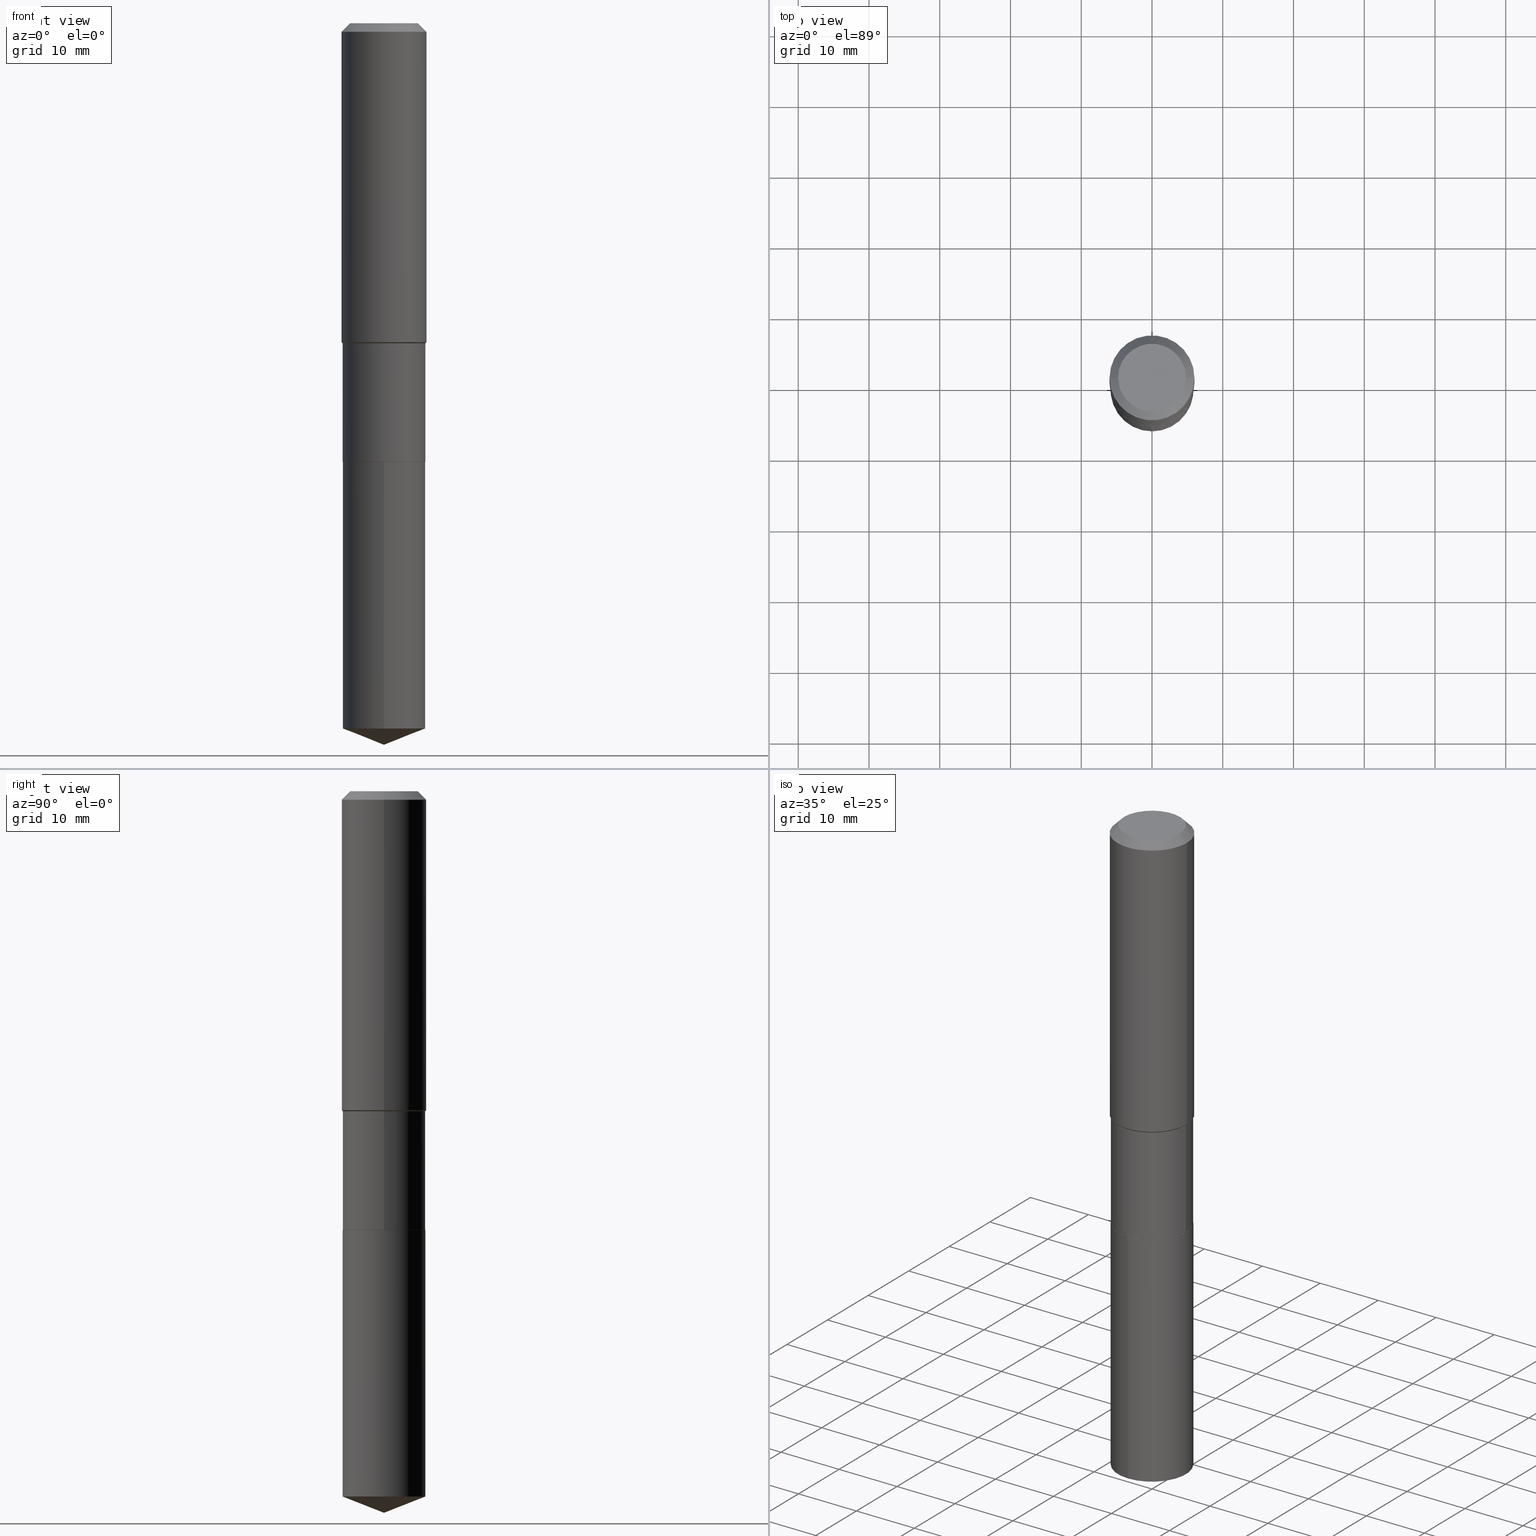
[diagram: canonical four-view strip — front | top / right | iso, engineering-drawing reading convention]
A machine part, canonical four-view strip (front | top / right | iso — engineering-drawing reading convention). The complete STEP part file that produces these views, byte-faithful:
ISO-10303-21;
HEADER;
FILE_DESCRIPTION (( 'STEP AP203' ),
    '1' );
FILE_NAME ('66487.STEP',
    '2024-04-24T23:36:51',
    ( '' ),
    ( '' ),
    'SwSTEP 2.0',
    'SolidWorks 2023',
    '' );
FILE_SCHEMA (( 'CONFIG_CONTROL_DESIGN' ));
ENDSEC;

DATA;
#1 = CYLINDRICAL_SURFACE ( 'NONE', #33, 0.2362000000000001043 ) ;
#2 = ORIENTED_EDGE ( 'NONE', *, *, #67, .T. ) ;
#3 = CARTESIAN_POINT ( 'NONE',  ( -9.427742298522546243E-47, 1.346031739168365344E-32, 3.855188123715862256E-18 ) ) ;
#4 = EDGE_CURVE ( 'NONE', #344, #413, #25, .T. ) ;
#5 = EDGE_LOOP ( 'NONE', ( #487, #421 ) ) ;
#6 = AXIS2_PLACEMENT_3D ( 'NONE', #352, #126, #206 ) ;
#7 = CIRCLE ( 'NONE', #150, 0.2302999999999999214 ) ;
#8 = ORIENTED_EDGE ( 'NONE', *, *, #53, .T. ) ;
#9 = PERSON_AND_ORGANIZATION ( #21, #162 ) ;
#10 = DIRECTION ( 'NONE',  ( 1.000000000000000000, -6.982962677686268288E-15, 0.000000000000000000 ) ) ;
#11 = CARTESIAN_POINT ( 'NONE',  ( 4.341440771620472019E-29, -6.198426820848235118E-15, -1.775299999999999434 ) ) ;
#12 = DIRECTION ( 'NONE',  ( 1.000000000000000000, -6.982962677686266711E-15, 0.000000000000000000 ) ) ;
#13 = DIRECTION ( 'NONE',  ( -2.445468806185136877E-29, 3.491481338843145188E-15, 1.000000000000000000 ) ) ;
#14 = CIRCLE ( 'NONE', #58, 0.2362000000000002153 ) ;
#15 =( GEOMETRIC_REPRESENTATION_CONTEXT ( 3 ) GLOBAL_UNCERTAINTY_ASSIGNED_CONTEXT ( ( #178 ) ) GLOBAL_UNIT_ASSIGNED_CONTEXT ( ( #317, #404, #329 ) ) REPRESENTATION_CONTEXT ( 'NONE', 'WORKASPACE' ) );
#16 = DIRECTION ( 'NONE',  ( -2.445468806185136597E-29, 3.491481338843145583E-15, 1.000000000000000000 ) ) ;
#17 = EDGE_LOOP ( 'NONE', ( #470, #378, #46, #83 ) ) ;
#18 = APPROVAL_ROLE ( '' ) ;
#19 = ADVANCED_FACE ( 'NONE', ( #360 ), #52, .T. ) ;
#20 = CARTESIAN_POINT ( 'NONE',  ( 0.2362000000000001043, -1.649375784469496920E-15, 1.151752954443000508E-29 ) ) ;
#21 = PERSON ( 'UNSPECIFIED', 'UNSPECIFIED', 'UNSPECIFIED', ('UNSPECIFIED'), ('UNSPECIFIED'), ('UNSPECIFIED') ) ;
#22 = DIRECTION ( 'NONE',  ( 1.000000000000000000, -6.982962677686266711E-15, 4.876185090822587894E-29 ) ) ;
#23 = ADVANCED_FACE ( 'NONE', ( #211 ), #319, .F. ) ;
#24 = DATE_AND_TIME ( #275, #315 ) ;
#25 = CIRCLE ( 'NONE', #370, 0.2361999999999999933 ) ;
#26 = AXIS2_PLACEMENT_3D ( 'NONE', #72, #478, #251 ) ;
#27 = LINE ( 'NONE', #31, #235 ) ;
#28 = APPROVAL_DATE_TIME ( #366, #359 ) ;
#29 = EDGE_CURVE ( 'NONE', #199, #60, #14, .T. ) ;
#30 = APPROVAL_ROLE ( '' ) ;
#31 = CARTESIAN_POINT ( 'NONE',  ( -1.608176304671087313E-15, -0.2303000000000085257, -2.440899999999999181 ) ) ;
#32 = CARTESIAN_POINT ( 'NONE',  ( -0.2298000000000000043, -6.886880366031413874E-15, -2.440900000000000070 ) ) ;
#33 = AXIS2_PLACEMENT_3D ( 'NONE', #453, #89, #116 ) ;
#34 = CARTESIAN_POINT ( 'NONE',  ( 4.355869037576965171E-29, -6.219026560747410438E-15, -1.781199999999999894 ) ) ;
#35 = APPROVAL_DATE_TIME ( #38, #301 ) ;
#36 = DIRECTION ( 'NONE',  ( 1.000000000000000000, -6.982962677686266711E-15, 4.876185090822587894E-29 ) ) ;
#37 = ORIENTED_EDGE ( 'NONE', *, *, #59, .T. ) ;
#38 = DATE_AND_TIME ( #76, #346 ) ;
#39 = FACE_OUTER_BOUND ( 'NONE', #450, .T. ) ;
#40 = AXIS2_PLACEMENT_3D ( 'NONE', #464, #279, #133 ) ;
#41 = VECTOR ( 'NONE', #296, 39.37007874015748143 ) ;
#42 = DIRECTION ( 'NONE',  ( -2.445399602320894408E-29, 3.491580442715579660E-15, 1.000000000000000000 ) ) ;
#43 = ORIENTED_EDGE ( 'NONE', *, *, #349, .F. ) ;
#44 = EDGE_LOOP ( 'NONE', ( #172, #357, #261, #107 ) ) ;
#45 = DIRECTION ( 'NONE',  ( -2.445468806185136597E-29, 3.491481338843145583E-15, 1.000000000000000000 ) ) ;
#46 = ORIENTED_EDGE ( 'NONE', *, *, #110, .F. ) ;
#47 = DESIGN_CONTEXT ( 'detailed design', #88, 'design' ) ;
#48 = VECTOR ( 'NONE', #341, 39.37007874015748143 ) ;
#49 = VERTEX_POINT ( 'NONE', #310 ) ;
#50 = CC_DESIGN_APPROVAL ( #324, ( #415 ) ) ;
#51 = DIRECTION ( 'NONE',  ( -2.438088387897960049E-29, 3.491481338843145188E-15, 1.000000000000000000 ) ) ;
#52 = CYLINDRICAL_SURFACE ( 'NONE', #6, 0.2303000000000000047 ) ;
#53 = EDGE_CURVE ( 'NONE', #109, #154, #250, .T. ) ;
#54 = CYLINDRICAL_SURFACE ( 'NONE', #276, 0.2362000000000001043 ) ;
#55 = DIRECTION ( 'NONE',  ( -2.445468806185136597E-29, 3.491481338843145583E-15, 1.000000000000000000 ) ) ;
#56 = DIRECTION ( 'NONE',  ( -2.445468806185136877E-29, 3.491481338843145188E-15, 1.000000000000000000 ) ) ;
#57 = VERTEX_POINT ( 'NONE', #239 ) ;
#58 = AXIS2_PLACEMENT_3D ( 'NONE', #11, #166, #12 ) ;
#59 = EDGE_CURVE ( 'NONE', #49, #454, #314, .T. ) ;
#60 = VERTEX_POINT ( 'NONE', #429 ) ;
#61 = CARTESIAN_POINT ( 'NONE',  ( 0.2298000000000000043, -1.012704162331453900E-14, -2.440900000000000070 ) ) ;
#62 = CARTESIAN_POINT ( 'NONE',  ( 5.967922074614207358E-29, -8.520611059312812251E-15, -2.440399999999999903 ) ) ;
#63 = APPROVAL_STATUS ( 'not_yet_approved' ) ;
#64 = EDGE_CURVE ( 'NONE', #191, #273, #207, .T. ) ;
#65 = AXIS2_PLACEMENT_3D ( 'NONE', #182, #321, #253 ) ;
#66 = CARTESIAN_POINT ( 'NONE',  ( 1.636379920455606805E-15, 0.2302999999999914560, -2.440900000000000514 ) ) ;
#67 = EDGE_CURVE ( 'NONE', #199, #344, #95, .T. ) ;
#68 = CARTESIAN_POINT ( 'NONE',  ( 0.000000000000000000, 0.000000000000000000, 0.000000000000000000 ) ) ;
#69 = SHAPE_DEFINITION_REPRESENTATION ( #216, #185 ) ;
#70 = DIRECTION ( 'NONE',  ( -2.445468806185136597E-29, 3.491481338843145583E-15, 1.000000000000000000 ) ) ;
#71 = DATE_AND_TIME ( #377, #245 ) ;
#72 = CARTESIAN_POINT ( 'NONE',  ( 1.155239464041865506E-30, -1.649375784469511859E-16, -0.04724000000000028177 ) ) ;
#73 = VECTOR ( 'NONE', #355, 39.37007874015748143 ) ;
#74 = CONICAL_SURFACE ( 'NONE', #267, 99.94676754583984746, 1.195550537616119069 ) ;
#75 = EDGE_CURVE ( 'NONE', #333, #57, #434, .T. ) ;
#76 = CALENDAR_DATE ( 2024, 24, 4 ) ;
#77 = DIRECTION ( 'NONE',  ( -0.7071067811864267805, 7.493145998869918709E-15, 0.7071067811866682540 ) ) ;
#78 = EDGE_LOOP ( 'NONE', ( #163, #240, #130, #340 ) ) ;
#79 = CC_DESIGN_DATE_AND_TIME_ASSIGNMENT ( #71, #105, ( #85 ) ) ;
#80 = DIRECTION ( 'NONE',  ( -6.982962677686265922E-15, -1.000000000000000000, 3.558638289619100968E-15 ) ) ;
#81 = ORIENTED_EDGE ( 'NONE', *, *, #59, .F. ) ;
#82 = CARTESIAN_POINT ( 'NONE',  ( -0.2302999999999999214, -5.733438889574600189E-15, -1.781199999999999894 ) ) ;
#83 = ORIENTED_EDGE ( 'NONE', *, *, #152, .F. ) ;
#84 = EDGE_CURVE ( 'NONE', #413, #344, #274, .T. ) ;
#85 = SECURITY_CLASSIFICATION ( '', '', #294 ) ;
#86 = ORIENTED_EDGE ( 'NONE', *, *, #225, .F. ) ;
#87 = CC_DESIGN_DATE_AND_TIME_ASSIGNMENT ( #24, #347, ( #415 ) ) ;
#88 = APPLICATION_CONTEXT ( 'configuration controlled 3d designs of mechanical parts and assemblies' ) ;
#89 = DIRECTION ( 'NONE',  ( -2.445468806185136597E-29, 3.491481338843145583E-15, 1.000000000000000000 ) ) ;
#90 = ORIENTED_EDGE ( 'NONE', *, *, #472, .T. ) ;
#91 = VERTEX_POINT ( 'NONE', #66 ) ;
#92 = EDGE_CURVE ( 'NONE', #57, #199, #140, .T. ) ;
#93 = AXIS2_PLACEMENT_3D ( 'NONE', #320, #403, #186 ) ;
#94 = DIRECTION ( 'NONE',  ( 2.438088387897960049E-29, -3.491481338843145188E-15, -1.000000000000000000 ) ) ;
#95 = LINE ( 'NONE', #20, #424 ) ;
#96 = LINE ( 'NONE', #420, #208 ) ;
#97 = ORIENTED_EDGE ( 'NONE', *, *, #286, .F. ) ;
#98 = ORIENTED_EDGE ( 'NONE', *, *, #84, .T. ) ;
#99 = CONICAL_SURFACE ( 'NONE', #193, 99.94676754583984746, 1.195550537616119069 ) ;
#100 = CARTESIAN_POINT ( 'NONE',  ( 5.969144809017299038E-29, -8.522356799982232966E-15, -2.440900000000000070 ) ) ;
#101 = CARTESIAN_POINT ( 'NONE',  ( 0.2362000000000002153, -7.847802605317732432E-15, -1.775299999999999434 ) ) ;
#102 = CC_DESIGN_PERSON_AND_ORGANIZATION_ASSIGNMENT ( #311, #165, ( #337 ) ) ;
#103 = AXIS2_PLACEMENT_3D ( 'NONE', #62, #475, #249 ) ;
#104 = AXIS2_PLACEMENT_3D ( 'NONE', #201, #129, #422 ) ;
#105 = DATE_TIME_ROLE ( 'classification_date' ) ;
#106 = DIRECTION ( 'NONE',  ( -0.7071067811865453523, 2.468850131082234184E-15, -0.7071067811865496822 ) ) ;
#107 = ORIENTED_EDGE ( 'NONE', *, *, #432, .F. ) ;
#108 = CARTESIAN_POINT ( 'NONE',  ( -0.2303000000000000047, -5.733438889574600189E-15, -2.440399999999999903 ) ) ;
#109 = VERTEX_POINT ( 'NONE', #61 ) ;
#110 = EDGE_CURVE ( 'NONE', #131, #91, #299, .T. ) ;
#111 = LINE ( 'NONE', #232, #136 ) ;
#112 = EDGE_LOOP ( 'NONE', ( #118, #174, #86 ) ) ;
#113 = EDGE_CURVE ( 'NONE', #233, #413, #217, .T. ) ;
#114 = FACE_OUTER_BOUND ( 'NONE', #44, .T. ) ;
#115 = ORIENTED_EDGE ( 'NONE', *, *, #428, .T. ) ;
#116 = DIRECTION ( 'NONE',  ( 1.000000000000000000, -6.982962677686266711E-15, 4.876176775795935793E-29 ) ) ;
#117 = ADVANCED_FACE ( 'NONE', ( #139 ), #369, .T. ) ;
#118 = ORIENTED_EDGE ( 'NONE', *, *, #482, .F. ) ;
#119 = FACE_OUTER_BOUND ( 'NONE', #246, .T. ) ;
#120 = ORIENTED_EDGE ( 'NONE', *, *, #67, .F. ) ;
#121 = AXIS2_PLACEMENT_3D ( 'NONE', #486, #229, #158 ) ;
#122 = DIRECTION ( 'NONE',  ( -2.445399602320894689E-29, 3.491580442715579660E-15, 1.000000000000000000 ) ) ;
#123 = ORIENTED_EDGE ( 'NONE', *, *, #349, .T. ) ;
#124 = DIRECTION ( 'NONE',  ( 1.000000000000000000, -6.982962677686265922E-15, 0.000000000000000000 ) ) ;
#125 = CARTESIAN_POINT ( 'NONE',  ( 1.155239464041865506E-30, -1.649375784469511859E-16, -0.04724000000000028177 ) ) ;
#126 = DIRECTION ( 'NONE',  ( -2.445399602320894408E-29, 3.491580442715579660E-15, 1.000000000000000000 ) ) ;
#127 = COORDINATED_UNIVERSAL_TIME_OFFSET ( 5, 0, .BEHIND. ) ;
#128 = AXIS2_PLACEMENT_3D ( 'NONE', #214, #287, #365 ) ;
#129 = DIRECTION ( 'NONE',  ( -2.445468806185136597E-29, 3.491481338843145583E-15, 1.000000000000000000 ) ) ;
#130 = ORIENTED_EDGE ( 'NONE', *, *, #29, .F. ) ;
#131 = VERTEX_POINT ( 'NONE', #291 ) ;
#132 = DIRECTION ( 'NONE',  ( -2.445468806185136597E-29, 3.491481338843145583E-15, 1.000000000000000000 ) ) ;
#133 = DIRECTION ( 'NONE',  ( -6.982962677686265922E-15, -1.000000000000000000, 2.372425526412734110E-15 ) ) ;
#134 = DIRECTION ( 'NONE',  ( 0.7071067811865434649, -2.468850131082213673E-15, 0.7071067811865516806 ) ) ;
#135 = AXIS2_PLACEMENT_3D ( 'NONE', #175, #438, #382 ) ;
#136 = VECTOR ( 'NONE', #77, 39.37007874015748143 ) ;
#137 = CARTESIAN_POINT ( 'NONE',  ( 0.000000000000000000, 0.000000000000000000, 0.000000000000000000 ) ) ;
#138 = EDGE_CURVE ( 'NONE', #333, #191, #335, .T. ) ;
#139 = FACE_OUTER_BOUND ( 'NONE', #230, .T. ) ;
#140 = LINE ( 'NONE', #398, #290 ) ;
#141 = ORIENTED_EDGE ( 'NONE', *, *, #75, .F. ) ;
#142 = AXIS2_PLACEMENT_3D ( 'NONE', #213, #362, #22 ) ;
#143 = DATE_AND_TIME ( #440, #188 ) ;
#144 = DIRECTION ( 'NONE',  ( 1.000000000000000000, -6.982962677686267499E-15, 0.000000000000000000 ) ) ;
#145 = ADVANCED_FACE ( 'NONE', ( #218 ), #227, .T. ) ;
#146 = CARTESIAN_POINT ( 'NONE',  ( -0.2302999999999999214, -4.582646640291900860E-15, -1.781199999999999894 ) ) ;
#147 = CC_DESIGN_PERSON_AND_ORGANIZATION_ASSIGNMENT ( #244, #479, ( #292 ) ) ;
#148 = FACE_OUTER_BOUND ( 'NONE', #383, .T. ) ;
#149 = ORIENTED_EDGE ( 'NONE', *, *, #84, .F. ) ;
#150 = AXIS2_PLACEMENT_3D ( 'NONE', #328, #70, #325 ) ;
#151 = CIRCLE ( 'NONE', #221, 0.2303000000000000047 ) ;
#152 = EDGE_CURVE ( 'NONE', #454, #131, #27, .T. ) ;
#153 = CARTESIAN_POINT ( 'NONE',  ( 0.2361999999999999933, -1.814313362916447440E-15, -0.04724000000000028177 ) ) ;
#154 = VERTEX_POINT ( 'NONE', #32 ) ;
#155 = CC_DESIGN_PERSON_AND_ORGANIZATION_ASSIGNMENT ( #9, #426, ( #337 ) ) ;
#156 = CARTESIAN_POINT ( 'NONE',  ( 0.000000000000000000, 0.000000000000000000, 0.000000000000000000 ) ) ;
#157 = ORIENTED_EDGE ( 'NONE', *, *, #472, .F. ) ;
#158 = DIRECTION ( 'NONE',  ( 1.000000000000000000, -6.982962677686267499E-15, 0.000000000000000000 ) ) ;
#159 = ORIENTED_EDGE ( 'NONE', *, *, #488, .F. ) ;
#160 = APPLICATION_CONTEXT ( 'configuration controlled 3d designs of mechanical parts and assemblies' ) ;
#161 = AXIS2_PLACEMENT_3D ( 'NONE', #461, #169, #423 ) ;
#162 = ORGANIZATION ( 'UNSPECIFIED', 'UNSPECIFIED', '' ) ;
#163 = ORIENTED_EDGE ( 'NONE', *, *, #164, .T. ) ;
#164 = EDGE_CURVE ( 'NONE', #57, #273, #7, .T. ) ;
#165 = PERSON_AND_ORGANIZATION_ROLE ( 'creator' ) ;
#166 = DIRECTION ( 'NONE',  ( -2.445468806185136597E-29, 3.491481338843145583E-15, 1.000000000000000000 ) ) ;
#167 = COORDINATED_UNIVERSAL_TIME_OFFSET ( 5, 0, .BEHIND. ) ;
#168 = DIRECTION ( 'NONE',  ( 1.000000000000000000, -6.982962677686266711E-15, 0.000000000000000000 ) ) ;
#169 = DIRECTION ( 'NONE',  ( -2.445468806185136597E-29, 3.491481338843145583E-15, 1.000000000000000000 ) ) ;
#170 = CIRCLE ( 'NONE', #93, 0.2303000000000000047 ) ;
#171 =( LENGTH_UNIT ( ) NAMED_UNIT ( * ) SI_UNIT ( $, .METRE. ) );
#172 = ORIENTED_EDGE ( 'NONE', *, *, #322, .F. ) ;
#173 = LENGTH_MEASURE_WITH_UNIT ( LENGTH_MEASURE( 0.02539999999999999897 ), #171 );
#174 = ORIENTED_EDGE ( 'NONE', *, *, #286, .T. ) ;
#175 = CARTESIAN_POINT ( 'NONE',  ( 9.598319362499793207E-29, -1.370414994418415615E-14, -3.924982417465879614 ) ) ;
#176 = AXIS2_PLACEMENT_3D ( 'NONE', #3, #376, #36 ) ;
#177 = AXIS2_PLACEMENT_3D ( 'NONE', #270, #351, #168 ) ;
#178 = UNCERTAINTY_MEASURE_WITH_UNIT (LENGTH_MEASURE( 1.000000000000000082E-05 ), #317, 'distance_accuracy_value', 'NONE');
#179 = ADVANCED_FACE ( 'NONE', ( #443 ), #379, .T. ) ;
#180 = DIRECTION ( 'NONE',  ( -2.445468806185136597E-29, 3.491481338843145583E-15, 1.000000000000000000 ) ) ;
#181 = EDGE_CURVE ( 'NONE', #91, #131, #170, .T. ) ;
#182 = CARTESIAN_POINT ( 'NONE',  ( 5.969144809017299038E-29, -8.522356799982232966E-15, -2.440900000000000070 ) ) ;
#183 = MECHANICAL_CONTEXT ( 'NONE', #160, 'mechanical' ) ;
#184 = ADVANCED_FACE ( 'NONE', ( #483 ), #473, .T. ) ;
#185 = ADVANCED_BREP_SHAPE_REPRESENTATION ( '66487', ( #197, #354, #300 ), #15 ) ;
#186 = DIRECTION ( 'NONE',  ( -6.982962677686265922E-15, -1.000000000000000000, 3.558638289619100968E-15 ) ) ;
#187 = AXIS2_PLACEMENT_3D ( 'NONE', #156, #260, #194 ) ;
#188 = LOCAL_TIME ( 19, 36, 51.00000000000000000, #323 ) ;
#189 = CARTESIAN_POINT ( 'NONE',  ( 1.636379920455570123E-15, 0.2302999999999914560, -2.440900000000000514 ) ) ;
#190 = FACE_OUTER_BOUND ( 'NONE', #112, .T. ) ;
#191 = VERTEX_POINT ( 'NONE', #108 ) ;
#192 = CARTESIAN_POINT ( 'NONE',  ( 9.819991183040015308E-29, -1.402113958381295422E-14, -4.015699999999999825 ) ) ;
#193 = AXIS2_PLACEMENT_3D ( 'NONE', #339, #42, #409 ) ;
#194 = DIRECTION ( 'NONE',  ( 1.000000000000000000, -6.982962677686266711E-15, 4.876176775795935793E-29 ) ) ;
#195 = ORIENTED_EDGE ( 'NONE', *, *, #181, .F. ) ;
#196 = ORIENTED_EDGE ( 'NONE', *, *, #331, .T. ) ;
#197 = MANIFOLD_SOLID_BREP ( 'Body-Move/Copy2[1]', #264 ) ;
#198 = ADVANCED_FACE ( 'NONE', ( #371 ), #437, .F. ) ;
#199 = VERTEX_POINT ( 'NONE', #101 ) ;
#200 = CIRCLE ( 'NONE', #284, 0.2302999999999999214 ) ;
#201 = CARTESIAN_POINT ( 'NONE',  ( 5.969144809017300159E-29, -8.522356799982234543E-15, -2.440900000000000070 ) ) ;
#202 = EDGE_CURVE ( 'NONE', #393, #233, #256, .T. ) ;
#203 = DIRECTION ( 'NONE',  ( -1.000000000000000000, 6.982962677686265922E-15, -4.876176775795935793E-29 ) ) ;
#204 = CALENDAR_DATE ( 2024, 24, 4 ) ;
#205 = CARTESIAN_POINT ( 'NONE',  ( 5.967922074614207358E-29, -8.520611059312812251E-15, -2.440399999999999903 ) ) ;
#206 = DIRECTION ( 'NONE',  ( -6.982962677686265922E-15, -1.000000000000000000, 3.558638289619100968E-15 ) ) ;
#207 = LINE ( 'NONE', #283, #73 ) ;
#208 = VECTOR ( 'NONE', #392, 39.37007874015748143 ) ;
#209 = ORIENTED_EDGE ( 'NONE', *, *, #4, .F. ) ;
#210 = APPLICATION_PROTOCOL_DEFINITION ( 'international standard', 'config_control_design', 1994, #160 ) ;
#211 = FACE_OUTER_BOUND ( 'NONE', #459, .T. ) ;
#212 = APPROVAL_ROLE ( '' ) ;
#213 = CARTESIAN_POINT ( 'NONE',  ( -9.427742298522546243E-47, 1.346031739168365344E-32, 3.855188123715862256E-18 ) ) ;
#214 = CARTESIAN_POINT ( 'NONE',  ( 1.155239464041865506E-30, -1.649375784469511859E-16, -0.04724000000000028177 ) ) ;
#215 = LOCAL_TIME ( 19, 36, 51.00000000000000000, #127 ) ;
#216 = PRODUCT_DEFINITION_SHAPE ( 'NONE', 'NONE',  #415 ) ;
#217 = LINE ( 'NONE', #405, #327 ) ;
#218 = FACE_OUTER_BOUND ( 'NONE', #456, .T. ) ;
#219 = AXIS2_PLACEMENT_3D ( 'NONE', #387, #94, #203 ) ;
#220 = AXIS2_PLACEMENT_3D ( 'NONE', #34, #303, #417 ) ;
#221 = AXIS2_PLACEMENT_3D ( 'NONE', #205, #132, #124 ) ;
#222 = ORIENTED_EDGE ( 'NONE', *, *, #419, .F. ) ;
#223 = CARTESIAN_POINT ( 'NONE',  ( 4.355869037576965171E-29, -6.219026560747410438E-15, -1.781199999999999894 ) ) ;
#224 = COORDINATED_UNIVERSAL_TIME_OFFSET ( 5, 0, .BEHIND. ) ;
#225 = EDGE_CURVE ( 'NONE', #454, #49, #480, .T. ) ;
#226 = ORIENTED_EDGE ( 'NONE', *, *, #428, .F. ) ;
#227 = CONICAL_SURFACE ( 'NONE', #128, 0.2361999999999999933, 0.7853981633974452814 ) ;
#228 = APPROVAL_PERSON_ORGANIZATION ( #462, #359, #212 ) ;
#229 = DIRECTION ( 'NONE',  ( -2.445468806185136597E-29, 3.491481338843145583E-15, 1.000000000000000000 ) ) ;
#230 = EDGE_LOOP ( 'NONE', ( #391, #431, #242, #141 ) ) ;
#231 = ADVANCED_FACE ( 'NONE', ( #148 ), #99, .T. ) ;
#232 = CARTESIAN_POINT ( 'NONE',  ( -0.2298000000000000043, -6.889529593205524286E-15, -2.440900000000000070 ) ) ;
#233 = VERTEX_POINT ( 'NONE', #298 ) ;
#234 = DIRECTION ( 'NONE',  ( 1.000000000000000000, -6.982962677686266711E-15, 0.000000000000000000 ) ) ;
#235 = VECTOR ( 'NONE', #442, 39.37007874015748143 ) ;
#236 = CC_DESIGN_APPROVAL ( #359, ( #337 ) ) ;
#237 = DIRECTION ( 'NONE',  ( 1.000000000000000000, -6.982962677686266711E-15, 4.876176775795935793E-29 ) ) ;
#238 = ADVANCED_FACE ( 'NONE', ( #455 ), #266, .T. ) ;
#239 = CARTESIAN_POINT ( 'NONE',  ( 0.2302999999999999214, -7.827202865418557901E-15, -1.781199999999999894 ) ) ;
#240 = ORIENTED_EDGE ( 'NONE', *, *, #322, .T. ) ;
#241 = ADVANCED_FACE ( 'NONE', ( #451 ), #414, .T. ) ;
#242 = ORIENTED_EDGE ( 'NONE', *, *, #164, .F. ) ;
#243 = CLOSED_SHELL ( 'NONE', ( #184, #179, #477, #367, #117, #241, #257, #247, #145, #23, #386, #238 ) ) ;
#244 = PERSON_AND_ORGANIZATION ( #21, #162 ) ;
#245 = LOCAL_TIME ( 19, 36, 51.00000000000000000, #224 ) ;
#246 = EDGE_LOOP ( 'NONE', ( #468, #37, #397, #195 ) ) ;
#247 = ADVANCED_FACE ( 'NONE', ( #39 ), #1, .T. ) ;
#248 = DIRECTION ( 'NONE',  ( 2.445399602320894128E-29, -3.491580442715579660E-15, -1.000000000000000000 ) ) ;
#249 = DIRECTION ( 'NONE',  ( 1.000000000000000000, -6.982962677686265922E-15, 0.000000000000000000 ) ) ;
#250 = CIRCLE ( 'NONE', #161, 0.2298000000000000043 ) ;
#251 = DIRECTION ( 'NONE',  ( -1.000000000000000000, 6.982962677686266711E-15, 0.000000000000000000 ) ) ;
#252 = APPROVAL_DATE_TIME ( #143, #324 ) ;
#253 = DIRECTION ( 'NONE',  ( -6.982962677686265922E-15, -1.000000000000000000, 3.558638289619100968E-15 ) ) ;
#254 = PERSON_AND_ORGANIZATION ( #21, #162 ) ;
#255 = ORIENTED_EDGE ( 'NONE', *, *, #113, .F. ) ;
#256 = CIRCLE ( 'NONE', #142, 0.1889600000000000168 ) ;
#257 = ADVANCED_FACE ( 'NONE', ( #114 ), #407, .T. ) ;
#258 = LINE ( 'NONE', #262, #48 ) ;
#259 = EDGE_LOOP ( 'NONE', ( #8, #196, #374, #43 ) ) ;
#260 = DIRECTION ( 'NONE',  ( -2.445468806185136597E-29, 3.491481338843145583E-15, 1.000000000000000000 ) ) ;
#261 = ORIENTED_EDGE ( 'NONE', *, *, #92, .T. ) ;
#262 = CARTESIAN_POINT ( 'NONE',  ( 9.820331984917436461E-29, -1.402065577852850472E-14, -4.015699999999999825 ) ) ;
#263 = ORIENTED_EDGE ( 'NONE', *, *, #488, .T. ) ;
#264 = CLOSED_SHELL ( 'NONE', ( #19, #338, #231, #265, #198 ) ) ;
#265 = ADVANCED_FACE ( 'NONE', ( #119 ), #412, .T. ) ;
#266 = CONICAL_SURFACE ( 'NONE', #121, 0.2298000000000000043, 0.7853981633972775267 ) ;
#267 = AXIS2_PLACEMENT_3D ( 'NONE', #332, #334, #489 ) ;
#268 = LINE ( 'NONE', #146, #41 ) ;
#269 = ORIENTED_EDGE ( 'NONE', *, *, #4, .T. ) ;
#270 = CARTESIAN_POINT ( 'NONE',  ( 4.341440771620472019E-29, -6.198426820848235118E-15, -1.775299999999999434 ) ) ;
#271 = ORIENTED_EDGE ( 'NONE', *, *, #288, .F. ) ;
#272 = PLANE ( 'NONE',  #307 ) ;
#273 = VERTEX_POINT ( 'NONE', #82 ) ;
#274 = CIRCLE ( 'NONE', #441, 0.2361999999999999933 ) ;
#275 = CALENDAR_DATE ( 2024, 24, 4 ) ;
#276 = AXIS2_PLACEMENT_3D ( 'NONE', #353, #16, #237 ) ;
#277 = CARTESIAN_POINT ( 'NONE',  ( -0.2361999999999999933, -1.503380257782235439E-15, -0.04724000000000028177 ) ) ;
#278 = EDGE_CURVE ( 'NONE', #273, #57, #200, .T. ) ;
#279 = DIRECTION ( 'NONE',  ( -2.445399602320894408E-29, 3.491580442715579660E-15, 1.000000000000000000 ) ) ;
#280 = DIRECTION ( 'NONE',  ( 0.7071067811865453523, -7.319954787623248157E-15, -0.7071067811865496822 ) ) ;
#281 = ORIENTED_EDGE ( 'NONE', *, *, #288, .T. ) ;
#282 = CARTESIAN_POINT ( 'NONE',  ( -0.2362000000000001043, 1.678301941865357380E-15, -1.161852468318209317E-29 ) ) ;
#283 = CARTESIAN_POINT ( 'NONE',  ( -0.2302999999999999770, 1.636379920455510564E-15, -1.132830751285704610E-29 ) ) ;
#284 = AXIS2_PLACEMENT_3D ( 'NONE', #223, #447, #444 ) ;
#285 = CARTESIAN_POINT ( 'NONE',  ( 5.969144809017300159E-29, -8.522356799982234543E-15, -2.440900000000000070 ) ) ;
#286 = EDGE_CURVE ( 'NONE', #306, #49, #258, .T. ) ;
#287 = DIRECTION ( 'NONE',  ( 2.445468806185136597E-29, -3.491481338843145583E-15, -1.000000000000000000 ) ) ;
#288 = EDGE_CURVE ( 'NONE', #233, #393, #388, .T. ) ;
#289 = DIRECTION ( 'NONE',  ( 6.982962677686265922E-15, 1.000000000000000000, -3.491580442715579660E-15 ) ) ;
#290 = VECTOR ( 'NONE', #134, 39.37007874015748143 ) ;
#291 = CARTESIAN_POINT ( 'NONE',  ( -1.608176304671087313E-15, -0.2303000000000085257, -2.440899999999999181 ) ) ;
#292 = PRODUCT ( '66487', '66487', '', ( #183 ) ) ;
#293 = DIRECTION ( 'NONE',  ( 1.000000000000000000, -6.982962677686266711E-15, 4.876176775795935793E-29 ) ) ;
#294 = SECURITY_CLASSIFICATION_LEVEL ( 'unclassified' ) ;
#295 = APPROVAL_STATUS ( 'not_yet_approved' ) ;
#296 = DIRECTION ( 'NONE',  ( -0.7071067811865434649, 7.493145998870339961E-15, 0.7071067811865516806 ) ) ;
#297 = DIRECTION ( 'NONE',  ( 0.000000000000000000, 0.000000000000000000, 1.000000000000000000 ) ) ;
#298 = CARTESIAN_POINT ( 'NONE',  ( -0.1889600000000000168, 1.401969416799070942E-15, 3.855188123706346622E-18 ) ) ;
#299 = CIRCLE ( 'NONE', #65, 0.2303000000000000047 ) ;
#300 = AXIS2_PLACEMENT_3D ( 'NONE', #68, #297, #446 ) ;
#301 = APPROVAL ( #295, 'UNSPECIFIED' ) ;
#302 = LINE ( 'NONE', #309, #436 ) ;
#303 = DIRECTION ( 'NONE',  ( -2.445468806185136597E-29, 3.491481338843145583E-15, 1.000000000000000000 ) ) ;
#304 = EDGE_LOOP ( 'NONE', ( #316, #90, #123, #222 ) ) ;
#305 = LINE ( 'NONE', #189, #381 ) ;
#306 = VERTEX_POINT ( 'NONE', #192 ) ;
#307 = AXIS2_PLACEMENT_3D ( 'NONE', #466, #51, #458 ) ;
#308 = EDGE_LOOP ( 'NONE', ( #380, #263, #209, #120 ) ) ;
#309 = CARTESIAN_POINT ( 'NONE',  ( 0.2298000000000000043, -1.012704162331453900E-14, -2.440900000000000070 ) ) ;
#310 = CARTESIAN_POINT ( 'NONE',  ( 1.636379920455606805E-15, 0.2302999999999863490, -3.924982417465880946 ) ) ;
#311 = PERSON_AND_ORGANIZATION ( #21, #162 ) ;
#312 = CARTESIAN_POINT ( 'NONE',  ( -1.608176304671051222E-15, -0.2303000000000136882, -3.924982417465879170 ) ) ;
#313 = ORIENTED_EDGE ( 'NONE', *, *, #202, .F. ) ;
#314 = CIRCLE ( 'NONE', #40, 0.2303000000000000047 ) ;
#315 = LOCAL_TIME ( 19, 36, 51.00000000000000000, #167 ) ;
#316 = ORIENTED_EDGE ( 'NONE', *, *, #331, .F. ) ;
#317 =( CONVERSION_BASED_UNIT ( 'INCH', #173 ) LENGTH_UNIT ( ) NAMED_UNIT ( #361 ) );
#318 = EDGE_CURVE ( 'NONE', #49, #91, #305, .T. ) ;
#319 = PLANE ( 'NONE',  #219 ) ;
#320 = CARTESIAN_POINT ( 'NONE',  ( 5.969144809017299038E-29, -8.522356799982232966E-15, -2.440900000000000070 ) ) ;
#321 = DIRECTION ( 'NONE',  ( -2.445399602320894408E-29, 3.491580442715579660E-15, 1.000000000000000000 ) ) ;
#322 = EDGE_CURVE ( 'NONE', #273, #60, #268, .T. ) ;
#323 = COORDINATED_UNIVERSAL_TIME_OFFSET ( 5, 0, .BEHIND. ) ;
#324 = APPROVAL ( #358, 'UNSPECIFIED' ) ;
#325 = DIRECTION ( 'NONE',  ( 1.000000000000000000, -6.982962677686268288E-15, 0.000000000000000000 ) ) ;
#326 = ORIENTED_EDGE ( 'NONE', *, *, #202, .T. ) ;
#327 = VECTOR ( 'NONE', #106, 39.37007874015748143 ) ;
#328 = CARTESIAN_POINT ( 'NONE',  ( 4.355869037576965171E-29, -6.219026560747410438E-15, -1.781199999999999894 ) ) ;
#329 =( NAMED_UNIT ( * ) SI_UNIT ( $, .STERADIAN. ) SOLID_ANGLE_UNIT ( ) );
#330 = DIRECTION ( 'NONE',  ( -2.445399602320894408E-29, 3.491580442715579660E-15, 1.000000000000000000 ) ) ;
#331 = EDGE_CURVE ( 'NONE', #154, #191, #111, .T. ) ;
#332 = CARTESIAN_POINT ( 'NONE',  ( -8.645541479177115506E-28, 1.234428992761355637E-13, 35.35437874015748605 ) ) ;
#333 = VERTEX_POINT ( 'NONE', #373 ) ;
#334 = DIRECTION ( 'NONE',  ( -2.445399602320894408E-29, 3.491580442715579660E-15, 1.000000000000000000 ) ) ;
#335 = CIRCLE ( 'NONE', #103, 0.2303000000000000047 ) ;
#336 = ORIENTED_EDGE ( 'NONE', *, *, #432, .T. ) ;
#337 = PRODUCT_DEFINITION_FORMATION_WITH_SPECIFIED_SOURCE ( 'ANY', '', #292, .NOT_KNOWN. ) ;
#338 = ADVANCED_FACE ( 'NONE', ( #190 ), #74, .T. ) ;
#339 = CARTESIAN_POINT ( 'NONE',  ( -8.645541479177115506E-28, 1.234428992761355637E-13, 35.35437874015748605 ) ) ;
#340 = ORIENTED_EDGE ( 'NONE', *, *, #92, .F. ) ;
#341 = DIRECTION ( 'NONE',  ( 6.611014441532066589E-15, 0.9304175679820270162, 0.3665012267242909183 ) ) ;
#342 = ORIENTED_EDGE ( 'NONE', *, *, #64, .F. ) ;
#343 = FACE_OUTER_BOUND ( 'NONE', #390, .T. ) ;
#344 = VERTEX_POINT ( 'NONE', #153 ) ;
#345 = AXIS2_PLACEMENT_3D ( 'NONE', #485, #330, #80 ) ;
#346 = LOCAL_TIME ( 19, 36, 51.00000000000000000, #408 ) ;
#347 = DATE_TIME_ROLE ( 'creation_date' ) ;
#348 = ORIENTED_EDGE ( 'NONE', *, *, #278, .F. ) ;
#349 = EDGE_CURVE ( 'NONE', #109, #333, #302, .T. ) ;
#350 = PERSON_AND_ORGANIZATION ( #21, #162 ) ;
#351 = DIRECTION ( 'NONE',  ( -2.445468806185136597E-29, 3.491481338843145583E-15, 1.000000000000000000 ) ) ;
#352 = CARTESIAN_POINT ( 'NONE',  ( 5.969144809017299038E-29, -8.522356799982232966E-15, -2.440900000000000070 ) ) ;
#353 = CARTESIAN_POINT ( 'NONE',  ( 0.000000000000000000, 0.000000000000000000, 0.000000000000000000 ) ) ;
#354 = MANIFOLD_SOLID_BREP ( 'Body-Move/Copy2[2]', #243 ) ;
#355 = DIRECTION ( 'NONE',  ( -2.445468806185136877E-29, 3.491481338843145188E-15, 1.000000000000000000 ) ) ;
#356 = AXIS2_PLACEMENT_3D ( 'NONE', #285, #180, #144 ) ;
#357 = ORIENTED_EDGE ( 'NONE', *, *, #278, .T. ) ;
#358 = APPROVAL_STATUS ( 'not_yet_approved' ) ;
#359 = APPROVAL ( #63, 'UNSPECIFIED' ) ;
#360 = FACE_OUTER_BOUND ( 'NONE', #17, .T. ) ;
#361 = DIMENSIONAL_EXPONENTS ( 1.000000000000000000, 0.000000000000000000, 0.000000000000000000, 0.000000000000000000, 0.000000000000000000, 0.000000000000000000, 0.000000000000000000 ) ;
#362 = DIRECTION ( 'NONE',  ( -2.445468806185136597E-29, 3.491481338843145583E-15, 1.000000000000000000 ) ) ;
#363 = AXIS2_PLACEMENT_3D ( 'NONE', #137, #368, #293 ) ;
#364 = CIRCLE ( 'NONE', #104, 0.2298000000000000043 ) ;
#365 = DIRECTION ( 'NONE',  ( -1.000000000000000000, 6.982962677686266711E-15, 0.000000000000000000 ) ) ;
#366 = DATE_AND_TIME ( #204, #215 ) ;
#367 = ADVANCED_FACE ( 'NONE', ( #385 ), #410, .T. ) ;
#368 = DIRECTION ( 'NONE',  ( -2.445468806185136597E-29, 3.491481338843145583E-15, 1.000000000000000000 ) ) ;
#369 = CYLINDRICAL_SURFACE ( 'NONE', #363, 0.2302999999999999770 ) ;
#370 = AXIS2_PLACEMENT_3D ( 'NONE', #125, #55, #234 ) ;
#371 = FACE_OUTER_BOUND ( 'NONE', #5, .T. ) ;
#372 = CIRCLE ( 'NONE', #177, 0.2362000000000002153 ) ;
#373 = CARTESIAN_POINT ( 'NONE',  ( 0.2303000000000000047, -1.012878736398395971E-14, -2.440399999999999903 ) ) ;
#374 = ORIENTED_EDGE ( 'NONE', *, *, #138, .F. ) ;
#375 = PERSON_AND_ORGANIZATION ( #21, #162 ) ;
#376 = DIRECTION ( 'NONE',  ( -2.445468806185136597E-29, 3.491481338843145583E-15, 1.000000000000000000 ) ) ;
#377 = CALENDAR_DATE ( 2024, 24, 4 ) ;
#378 = ORIENTED_EDGE ( 'NONE', *, *, #318, .T. ) ;
#379 = CONICAL_SURFACE ( 'NONE', #26, 0.2361999999999999933, 0.7853981633974452814 ) ;
#380 = ORIENTED_EDGE ( 'NONE', *, *, #29, .T. ) ;
#381 = VECTOR ( 'NONE', #122, 39.37007874015748143 ) ;
#382 = DIRECTION ( 'NONE',  ( -6.982962677686265922E-15, -1.000000000000000000, 2.372425526412734110E-15 ) ) ;
#383 = EDGE_LOOP ( 'NONE', ( #97, #490, #81 ) ) ;
#384 = ORIENTED_EDGE ( 'NONE', *, *, #419, .T. ) ;
#385 = FACE_OUTER_BOUND ( 'NONE', #78, .T. ) ;
#386 = ADVANCED_FACE ( 'NONE', ( #343 ), #272, .F. ) ;
#387 = CARTESIAN_POINT ( 'NONE',  ( -4.713871149261273121E-47, 6.730158695841826722E-33, 1.927594061857931128E-18 ) ) ;
#388 = CIRCLE ( 'NONE', #176, 0.1889600000000000168 ) ;
#389 = DIRECTION ( 'NONE',  ( 0.7071067811864267805, -2.468850131080992517E-15, 0.7071067811866682540 ) ) ;
#390 = EDGE_LOOP ( 'NONE', ( #416, #157 ) ) ;
#391 = ORIENTED_EDGE ( 'NONE', *, *, #138, .T. ) ;
#392 = DIRECTION ( 'NONE',  ( -6.497071151882118258E-15, -0.9304175679820244627, 0.3665012267242974686 ) ) ;
#393 = VERTEX_POINT ( 'NONE', #433 ) ;
#394 = CC_DESIGN_PERSON_AND_ORGANIZATION_ASSIGNMENT ( #254, #449, ( #85 ) ) ;
#395 = VECTOR ( 'NONE', #280, 39.37007874015748143 ) ;
#396 = APPLICATION_PROTOCOL_DEFINITION ( 'international standard', 'config_control_design', 1994, #88 ) ;
#397 = ORIENTED_EDGE ( 'NONE', *, *, #152, .T. ) ;
#398 = CARTESIAN_POINT ( 'NONE',  ( 0.2302999999999999214, -7.827202865418557901E-15, -1.781199999999999894 ) ) ;
#399 = DIRECTION ( 'NONE',  ( 1.000000000000000000, -6.982962677686266711E-15, 0.000000000000000000 ) ) ;
#400 = PERSON_AND_ORGANIZATION_ROLE ( 'creator' ) ;
#401 = AXIS2_PLACEMENT_3D ( 'NONE', #100, #248, #289 ) ;
#402 = CARTESIAN_POINT ( 'NONE',  ( 1.155239464041865506E-30, -1.649375784469511859E-16, -0.04724000000000028177 ) ) ;
#403 = DIRECTION ( 'NONE',  ( -2.445399602320894408E-29, 3.491580442715579660E-15, 1.000000000000000000 ) ) ;
#404 =( NAMED_UNIT ( * ) PLANE_ANGLE_UNIT ( ) SI_UNIT ( $, .RADIAN. ) );
#405 = CARTESIAN_POINT ( 'NONE',  ( -0.2361999999999999933, 1.484438206022545019E-15, -0.04724000000000028177 ) ) ;
#406 = PRODUCT_RELATED_PRODUCT_CATEGORY ( 'detail', '', ( #292 ) ) ;
#407 = CONICAL_SURFACE ( 'NONE', #220, 0.2302999999999999214, 0.7853981633974425058 ) ;
#408 = COORDINATED_UNIVERSAL_TIME_OFFSET ( 5, 0, .BEHIND. ) ;
#409 = DIRECTION ( 'NONE',  ( -6.982962677686265922E-15, -1.000000000000000000, 3.498627837350008561E-15 ) ) ;
#410 = CONICAL_SURFACE ( 'NONE', #474, 0.2302999999999999214, 0.7853981633974425058 ) ;
#411 = ORIENTED_EDGE ( 'NONE', *, *, #113, .T. ) ;
#412 = CYLINDRICAL_SURFACE ( 'NONE', #345, 0.2303000000000000047 ) ;
#413 = VERTEX_POINT ( 'NONE', #277 ) ;
#414 = CYLINDRICAL_SURFACE ( 'NONE', #187, 0.2302999999999999770 ) ;
#415 = PRODUCT_DEFINITION ( 'UNKNOWN', '', #337, #47 ) ;
#416 = ORIENTED_EDGE ( 'NONE', *, *, #53, .F. ) ;
#417 = DIRECTION ( 'NONE',  ( 1.000000000000000000, -6.982962677686268288E-15, 0.000000000000000000 ) ) ;
#418 = EDGE_LOOP ( 'NONE', ( #342, #384, #445, #348 ) ) ;
#419 = EDGE_CURVE ( 'NONE', #191, #333, #151, .T. ) ;
#420 = CARTESIAN_POINT ( 'NONE',  ( 9.819991183040015308E-29, -1.402113958381295106E-14, -4.015699999999999825 ) ) ;
#421 = ORIENTED_EDGE ( 'NONE', *, *, #181, .T. ) ;
#422 = DIRECTION ( 'NONE',  ( 1.000000000000000000, -6.982962677686267499E-15, 0.000000000000000000 ) ) ;
#423 = DIRECTION ( 'NONE',  ( 1.000000000000000000, -6.982962677686267499E-15, 0.000000000000000000 ) ) ;
#424 = VECTOR ( 'NONE', #13, 39.37007874015748143 ) ;
#425 = APPROVAL_PERSON_ORGANIZATION ( #375, #301, #30 ) ;
#426 = PERSON_AND_ORGANIZATION_ROLE ( 'design_supplier' ) ;
#427 = LINE ( 'NONE', #469, #395 ) ;
#428 = EDGE_CURVE ( 'NONE', #393, #344, #427, .T. ) ;
#429 = CARTESIAN_POINT ( 'NONE',  ( -0.2362000000000002153, -4.520124878982877146E-15, -1.775299999999999434 ) ) ;
#430 = FACE_OUTER_BOUND ( 'NONE', #308, .T. ) ;
#431 = ORIENTED_EDGE ( 'NONE', *, *, #64, .T. ) ;
#432 = EDGE_CURVE ( 'NONE', #60, #199, #372, .T. ) ;
#433 = CARTESIAN_POINT ( 'NONE',  ( 0.1889600000000000168, -1.540873453589747738E-15, 3.855188123725863225E-18 ) ) ;
#434 = LINE ( 'NONE', #476, #435 ) ;
#435 = VECTOR ( 'NONE', #439, 39.37007874015748143 ) ;
#436 = VECTOR ( 'NONE', #389, 39.37007874015748143 ) ;
#437 = PLANE ( 'NONE',  #401 ) ;
#438 = DIRECTION ( 'NONE',  ( -2.445399602320894408E-29, 3.491580442715579660E-15, 1.000000000000000000 ) ) ;
#439 = DIRECTION ( 'NONE',  ( -2.445468806185136877E-29, 3.491481338843145188E-15, 1.000000000000000000 ) ) ;
#440 = CALENDAR_DATE ( 2024, 24, 4 ) ;
#441 = AXIS2_PLACEMENT_3D ( 'NONE', #402, #471, #399 ) ;
#442 = DIRECTION ( 'NONE',  ( -2.445399602320894689E-29, 3.491580442715579660E-15, 1.000000000000000000 ) ) ;
#443 = FACE_OUTER_BOUND ( 'NONE', #452, .T. ) ;
#444 = DIRECTION ( 'NONE',  ( 1.000000000000000000, -6.982962677686268288E-15, 0.000000000000000000 ) ) ;
#445 = ORIENTED_EDGE ( 'NONE', *, *, #75, .T. ) ;
#446 = DIRECTION ( 'NONE',  ( 1.000000000000000000, 0.000000000000000000, 0.000000000000000000 ) ) ;
#447 = DIRECTION ( 'NONE',  ( -2.445468806185136597E-29, 3.491481338843145583E-15, 1.000000000000000000 ) ) ;
#448 = VECTOR ( 'NONE', #56, 39.37007874015748143 ) ;
#449 = PERSON_AND_ORGANIZATION_ROLE ( 'classification_officer' ) ;
#450 = EDGE_LOOP ( 'NONE', ( #159, #336, #2, #149 ) ) ;
#451 = FACE_OUTER_BOUND ( 'NONE', #418, .T. ) ;
#452 = EDGE_LOOP ( 'NONE', ( #313, #115, #269, #255 ) ) ;
#453 = CARTESIAN_POINT ( 'NONE',  ( 0.000000000000000000, 0.000000000000000000, 0.000000000000000000 ) ) ;
#454 = VERTEX_POINT ( 'NONE', #312 ) ;
#455 = FACE_OUTER_BOUND ( 'NONE', #304, .T. ) ;
#456 = EDGE_LOOP ( 'NONE', ( #226, #271, #411, #98 ) ) ;
#457 = APPROVAL_PERSON_ORGANIZATION ( #484, #324, #18 ) ;
#458 = DIRECTION ( 'NONE',  ( 1.000000000000000000, -6.982962677686265922E-15, 4.876176775795935793E-29 ) ) ;
#459 = EDGE_LOOP ( 'NONE', ( #281, #326 ) ) ;
#460 = CARTESIAN_POINT ( 'NONE',  ( 4.355869037576965171E-29, -6.219026560747410438E-15, -1.781199999999999894 ) ) ;
#461 = CARTESIAN_POINT ( 'NONE',  ( 5.969144809017300159E-29, -8.522356799982234543E-15, -2.440900000000000070 ) ) ;
#462 = PERSON_AND_ORGANIZATION ( #21, #162 ) ;
#463 = LINE ( 'NONE', #282, #448 ) ;
#464 = CARTESIAN_POINT ( 'NONE',  ( 9.598319362499793207E-29, -1.370414994418415615E-14, -3.924982417465879614 ) ) ;
#465 = CC_DESIGN_APPROVAL ( #301, ( #85 ) ) ;
#466 = CARTESIAN_POINT ( 'NONE',  ( 3.942879941713351424E-29, -1.142408341779559468E-14, -2.440900000000000070 ) ) ;
#467 = CC_DESIGN_PERSON_AND_ORGANIZATION_ASSIGNMENT ( #350, #400, ( #415 ) ) ;
#468 = ORIENTED_EDGE ( 'NONE', *, *, #318, .F. ) ;
#469 = CARTESIAN_POINT ( 'NONE',  ( 0.2361999999999999933, -1.785387205520586782E-15, -0.04724000000000028177 ) ) ;
#470 = ORIENTED_EDGE ( 'NONE', *, *, #225, .T. ) ;
#471 = DIRECTION ( 'NONE',  ( -2.445468806185136597E-29, 3.491481338843145583E-15, 1.000000000000000000 ) ) ;
#472 = EDGE_CURVE ( 'NONE', #154, #109, #364, .T. ) ;
#473 = CONICAL_SURFACE ( 'NONE', #356, 0.2298000000000000043, 0.7853981633972775267 ) ;
#474 = AXIS2_PLACEMENT_3D ( 'NONE', #460, #45, #10 ) ;
#475 = DIRECTION ( 'NONE',  ( -2.445468806185136597E-29, 3.491481338843145583E-15, 1.000000000000000000 ) ) ;
#476 = CARTESIAN_POINT ( 'NONE',  ( 0.2302999999999999770, -1.608176304671147069E-15, 1.122983511465803858E-29 ) ) ;
#477 = ADVANCED_FACE ( 'NONE', ( #430 ), #54, .T. ) ;
#478 = DIRECTION ( 'NONE',  ( 2.445468806185136597E-29, -3.491481338843145583E-15, -1.000000000000000000 ) ) ;
#479 = PERSON_AND_ORGANIZATION_ROLE ( 'design_owner' ) ;
#480 = CIRCLE ( 'NONE', #135, 0.2303000000000000047 ) ;
#481 = CC_DESIGN_SECURITY_CLASSIFICATION ( #85, ( #337 ) ) ;
#482 = EDGE_CURVE ( 'NONE', #306, #454, #96, .T. ) ;
#483 = FACE_OUTER_BOUND ( 'NONE', #259, .T. ) ;
#484 = PERSON_AND_ORGANIZATION ( #21, #162 ) ;
#485 = CARTESIAN_POINT ( 'NONE',  ( 5.969144809017299038E-29, -8.522356799982232966E-15, -2.440900000000000070 ) ) ;
#486 = CARTESIAN_POINT ( 'NONE',  ( 5.969144809017300159E-29, -8.522356799982234543E-15, -2.440900000000000070 ) ) ;
#487 = ORIENTED_EDGE ( 'NONE', *, *, #110, .T. ) ;
#488 = EDGE_CURVE ( 'NONE', #60, #413, #463, .T. ) ;
#489 = DIRECTION ( 'NONE',  ( -6.982962677686265922E-15, -1.000000000000000000, 3.498627837350008561E-15 ) ) ;
#490 = ORIENTED_EDGE ( 'NONE', *, *, #482, .T. ) ;
ENDSEC;
END-ISO-10303-21;
